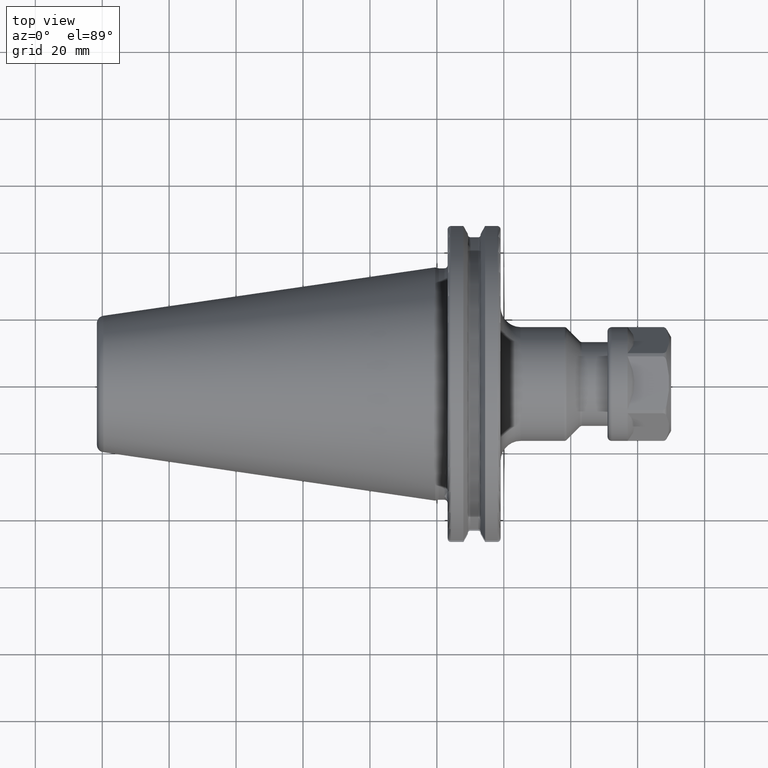
[diagram: clean part render]
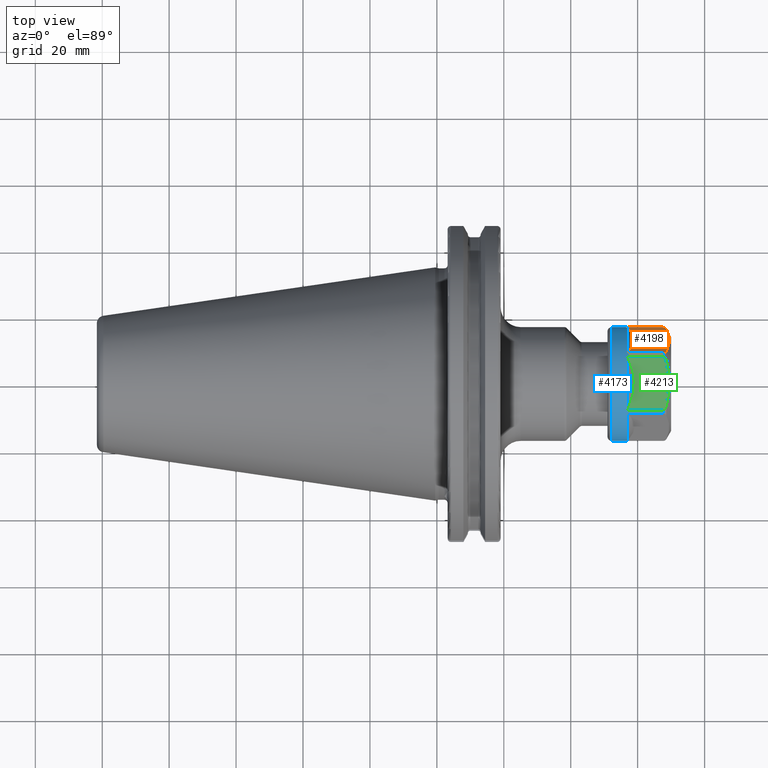
[diagram: same view with three faces highlighted in distinct colors, each labeled with its STEP entity id]
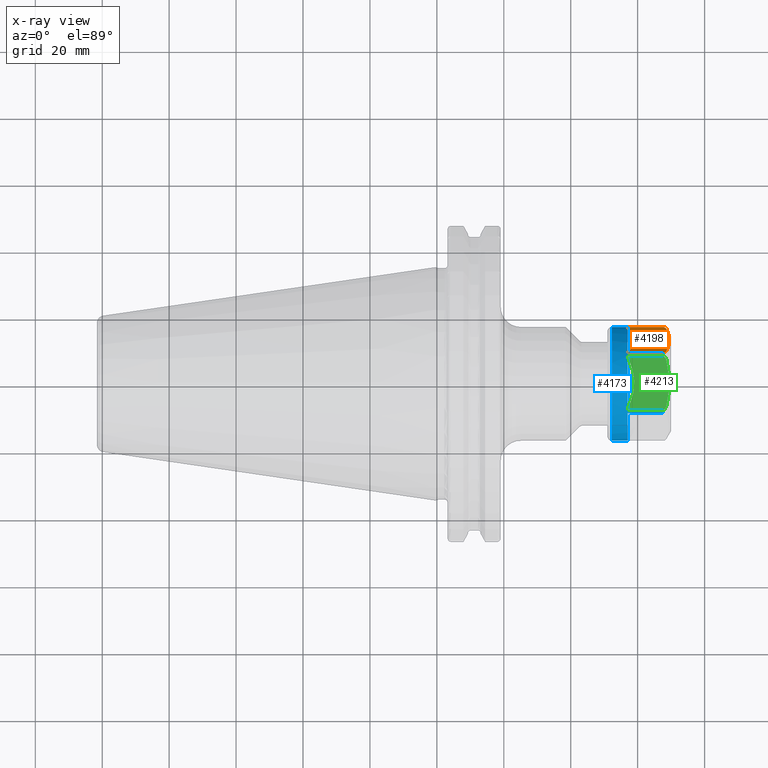
[diagram: x-ray of the same camera — body ghosted, the three highlighted faces saturated]
A machine part, top view with three faces highlighted in distinct colors.
The next image is the same camera in x-ray (body ghosted, the three faces saturated) — at least one of them is partly hidden behind the body in this view.
Their STEP definitions:

[orange] entity #4198 — the highlighted planar face has unit normal (0, -0.866, -0.5).
#3494=CARTESIAN_POINT('',(1.762879311067E1,9.706304892912E0,1.318818677172E1));
#3495=CARTESIAN_POINT('',(1.760135930288E1,9.647073108607E0,1.329077923156E1));
#3496=CARTESIAN_POINT('',(1.753829156841E1,9.530599845490E0,1.349251684100E1));
#3497=CARTESIAN_POINT('',(1.740404374214E1,9.356157215149E0,1.379466033976E1));
#3498=CARTESIAN_POINT('',(1.723276370862E1,9.203905182235E0,1.405836859632E1));
#3499=CARTESIAN_POINT('',(1.702726259196E1,9.084444597540E0,1.426528039852E1));
#3500=CARTESIAN_POINT('',(1.679442486846E1,9.008179269951E0,1.439737582076E1));
#3501=CARTESIAN_POINT('',(1.663092243804E1,8.990381056767E0,1.442820323028E1));
#3502=CARTESIAN_POINT('',(1.654626135594E1,8.990381056767E0,1.442820323028E1));
#3514=CARTESIAN_POINT('',(1.654626135594E1,1.699038105677E1,5.717967697245E-1));
#3515=CARTESIAN_POINT('',(1.663133375969E1,1.699038105677E1,5.717967697245E-1));
#3516=CARTESIAN_POINT('',(1.679554974256E1,1.697244211546E1,6.028679274930E-1));
#3517=CARTESIAN_POINT('',(1.702967586056E1,1.689531224929E1,7.364607744958E-1));
#3518=CARTESIAN_POINT('',(1.723504960512E1,1.677516391716E1,9.445637901788E-1));
#3519=CARTESIAN_POINT('',(1.740538646210E1,1.662305531649E1,1.208023614806E0));
#3520=CARTESIAN_POINT('',(1.753869894456E1,1.644942669453E1,1.508757209691E0));
#3521=CARTESIAN_POINT('',(1.760147975856E1,1.633342893149E1,1.709671228847E0));
#3522=CARTESIAN_POINT('',(1.762879311067E1,1.627445722062E1,1.811813228277E0));
#3614=CARTESIAN_POINT('',(1.762879311067E1,1.627445722062E1,1.811813228277E0));
#3615=CARTESIAN_POINT('',(1.783518476881E1,1.582884113008E1,2.583642937761E0));
#3616=CARTESIAN_POINT('',(1.817379271881E1,1.494402612666E1,4.116187478983E0));
#3617=CARTESIAN_POINT('',(1.843326934202E1,1.364301139240E1,6.369611100118E0));
#3618=CARTESIAN_POINT('',(1.843317407038E1,1.233698125034E1,8.631721662380E0));
#3619=CARTESIAN_POINT('',(1.817365600931E1,1.103635924051E1,1.088446506485E1));
#3620=CARTESIAN_POINT('',(1.783512110256E1,1.015178352292E1,1.241659515086E1));
#3621=CARTESIAN_POINT('',(1.762879311067E1,9.706304892912E0,1.318818677172E1));
#3699=CARTESIAN_POINT('',(6.009975831212E0,8.990381056767E0,1.442820323028E1));
#3700=CARTESIAN_POINT('',(6.248705399148E0,9.244028357085E0,1.398887321892E1));
#3701=CARTESIAN_POINT('',(6.673161357616E0,9.732842219418E0,1.314222277390E1));
#3702=CARTESIAN_POINT('',(7.159352323164E0,1.040499234248E1,1.197802461053E1));
#3703=CARTESIAN_POINT('',(7.516069298766E0,1.102203592348E1,1.090927377739E1));
#3704=CARTESIAN_POINT('',(7.761786246495E0,1.158669594192E1,9.931253937807E0));
#3705=CARTESIAN_POINT('',(7.915614399383E0,1.210134303711E1,9.039859015960E0));
#3706=CARTESIAN_POINT('',(7.995404065458E0,1.257267206196E1,8.223493216510E0));
#3707=CARTESIAN_POINT('',(8.017329716448E0,1.299097410315E1,7.498972758548E0));
#3708=CARTESIAN_POINT('',(7.995272685055E0,1.340927247380E1,6.774458988068E0));
#3709=CARTESIAN_POINT('',(7.915318904821E0,1.388066989644E1,5.957973730341E0));
#3710=CARTESIAN_POINT('',(7.761327500503E0,1.439528977644E1,5.066629576057E0));
#3711=CARTESIAN_POINT('',(7.515496046212E0,1.495983159183E1,4.088800942133E0));
#3712=CARTESIAN_POINT('',(7.158726522063E0,1.557669508518E1,3.020412512533E0));
#3713=CARTESIAN_POINT('',(6.672731555474E0,1.624842183706E1,1.856759247260E0));
#3714=CARTESIAN_POINT('',(6.248388969252E0,1.673708398548E1,1.010840329549E0));
#3715=CARTESIAN_POINT('',(6.009864102845E0,1.699051967746E1,5.718768346038E-1));
#3717=DIRECTION('',(9.999999998846E-1,-1.315636510517E-5,-7.598885784195E-6));
#3718=VECTOR('',#3717,1.053639725432E1);
#3719=CARTESIAN_POINT('',(6.009864102845E0,1.699051967746E1,5.718768346038E-1));
#3720=LINE('',#3719,#3718);
#3721=DIRECTION('',(-1.E0,0.E0,0.E0));
#3722=VECTOR('',#3721,1.053628552473E1);
#3723=CARTESIAN_POINT('',(1.654626135594E1,8.990381056767E0,1.442820323028E1));
#3724=LINE('',#3723,#3722);
#3800=VERTEX_POINT('',#3614);
#3801=VERTEX_POINT('',#3621);
#3812=VERTEX_POINT('',#3502);
#3813=VERTEX_POINT('',#3514);
#3836=CARTESIAN_POINT('',(6.009993566245E0,8.990371677756E0,1.442818817817E1));
#3837=CARTESIAN_POINT('',(6.009993566245E0,1.699035504402E1,5.717958944728E-1));
#3838=VERTEX_POINT('',#3836);
#3839=VERTEX_POINT('',#3837);
#4185=CARTESIAN_POINT('',(1.9E1,8.660254037844E0,1.5E1));
#4186=DIRECTION('',(0.E0,-8.660254037844E-1,-5.E-1));
#4187=DIRECTION('',(0.E0,5.E-1,-8.660254037844E-1));
#4188=AXIS2_PLACEMENT_3D('',#4185,#4186,#4187);
#4189=PLANE('',#4188);
#4190=ORIENTED_EDGE('',*,*,#4180,.T.);
#4191=ORIENTED_EDGE('',*,*,#4169,.T.);
#4192=ORIENTED_EDGE('',*,*,#4039,.T.);
#4193=ORIENTED_EDGE('',*,*,#4105,.T.);
#4194=ORIENTED_EDGE('',*,*,#4019,.T.);
#4195=ORIENTED_EDGE('',*,*,#4150,.T.);
#4196=EDGE_LOOP('',(#4190,#4191,#4192,#4193,#4194,#4195));
#4197=FACE_OUTER_BOUND('',#4196,.F.);
#4198=ADVANCED_FACE('',(#4197),#4189,.F.);
#3503=B_SPLINE_CURVE_WITH_KNOTS('',3,(#3494,#3495,#3496,#3497,#3498,#3499,#3500,
#3501,#3502),.UNSPECIFIED.,.F.,.F.,(4,1,1,1,1,1,4),(0.E0,1.666666666667E-1,
3.333333333333E-1,5.E-1,6.666666666667E-1,8.333333333333E-1,1.E0),
.UNSPECIFIED.);
#3523=B_SPLINE_CURVE_WITH_KNOTS('',3,(#3514,#3515,#3516,#3517,#3518,#3519,#3520,
#3521,#3522),.UNSPECIFIED.,.F.,.F.,(4,1,1,1,1,1,4),(0.E0,1.666666666667E-1,
3.333333333333E-1,5.E-1,6.666666666667E-1,8.333333333333E-1,1.E0),
.UNSPECIFIED.);
#3622=B_SPLINE_CURVE_WITH_KNOTS('',3,(#3614,#3615,#3616,#3617,#3618,#3619,#3620,
#3621),.UNSPECIFIED.,.F.,.F.,(4,1,1,1,1,4),(0.E0,2.E-1,4.E-1,6.E-1,8.E-1,1.E0),
.UNSPECIFIED.);
#3716=B_SPLINE_CURVE_WITH_KNOTS('',3,(#3699,#3700,#3701,#3702,#3703,#3704,#3705,
#3706,#3707,#3708,#3709,#3710,#3711,#3712,#3713,#3714,#3715),.UNSPECIFIED.,.F.,
.F.,(4,1,1,1,1,1,1,1,1,1,1,1,1,1,4),(0.E0,7.142857142857E-2,1.428571428571E-1,
2.142857142857E-1,2.857142857143E-1,3.571428571429E-1,4.285714285714E-1,5.E-1,
5.714285714286E-1,6.428571428571E-1,7.142857142857E-1,7.857142857143E-1,
8.571428571429E-1,9.285714285714E-1,1.E0),.UNSPECIFIED.);
#4019=EDGE_CURVE('',#3801,#3812,#3503,.T.);
#4039=EDGE_CURVE('',#3813,#3800,#3523,.T.);
#4105=EDGE_CURVE('',#3800,#3801,#3622,.T.);
#4150=EDGE_CURVE('',#3812,#3838,#3724,.T.);
#4169=EDGE_CURVE('',#3839,#3813,#3720,.T.);
#4180=EDGE_CURVE('',#3838,#3839,#3716,.T.);

[blue] entity #4173 — the highlighted cylindrical surface (partial cylindrical patch) has radius 17 mm, axis along (1, 0, 0).
#3386=DIRECTION('',(-1.E0,0.E0,4.859249806958E-11));
#3387=VECTOR('',#3386,1.529626135594E1);
#3388=CARTESIAN_POINT('',(1.654626135594E1,1.7E1,-1.152775558652E-10));
#3389=LINE('',#3388,#3387);
#3395=DIRECTION('',(-1.E0,0.E0,-4.859253938540E-11));
#3396=VECTOR('',#3395,1.529626135594E1);
#3397=CARTESIAN_POINT('',(1.654626135594E1,-1.7E1,1.152775494066E-10));
#3398=LINE('',#3397,#3396);
#3462=CARTESIAN_POINT('',(1.654626135594E1,-1.699038105677E1,
5.717967697245E-1));
#3464=CARTESIAN_POINT('',(1.654626135594E1,-8.990381056767E0,1.442820323028E1));
#3482=CARTESIAN_POINT('',(1.654626135594E1,-8.E0,1.5E1));
#3484=CARTESIAN_POINT('',(1.654626135594E1,8.E0,1.5E1));
#3502=CARTESIAN_POINT('',(1.654626135594E1,8.990381056767E0,1.442820323028E1));
#3514=CARTESIAN_POINT('',(1.654626135594E1,1.699038105677E1,5.717967697245E-1));
#3656=DIRECTION('',(9.999999992374E-1,-3.427788888926E-5,1.871268806668E-5));
#3657=VECTOR('',#3656,1.053590077871E1);
#3658=CARTESIAN_POINT('',(6.010360585267E0,-8.990019908330E0,1.442800607525E1));
#3659=LINE('',#3658,#3657);
#3660=DIRECTION('',(-1.E0,0.E0,0.E0));
#3661=VECTOR('',#3660,1.053616719791E1);
#3662=CARTESIAN_POINT('',(1.654626135594E1,-1.699038105677E1,
5.717967697245E-1));
#3663=LINE('',#3662,#3661);
#3664=CARTESIAN_POINT('',(6.010022197914E0,7.337104015724E-4,
-4.120040762721E-4));
#3665=DIRECTION('',(-1.E0,0.E0,0.E0));
#3666=DIRECTION('',(0.E0,-9.994334137081E-1,3.365786035761E-2));
#3667=AXIS2_PLACEMENT_3D('',#3664,#3665,#3666);
#3669=CARTESIAN_POINT('',(1.654626135594E1,0.E0,0.E0));
#3670=DIRECTION('',(-1.E0,0.E0,0.E0));
#3671=DIRECTION('',(0.E0,4.705882352941E-1,8.823529411765E-1));
#3672=AXIS2_PLACEMENT_3D('',#3669,#3670,#3671);
#3674=CARTESIAN_POINT('',(1.654626135594E1,0.E0,0.E0));
#3675=DIRECTION('',(-1.E0,0.E0,0.E0));
#3676=DIRECTION('',(0.E0,-5.288459445157E-1,8.487178370750E-1));
#3677=AXIS2_PLACEMENT_3D('',#3674,#3675,#3676);
#3679=CARTESIAN_POINT('',(1.654626135594E1,0.E0,0.E0));
#3680=DIRECTION('',(-1.E0,0.E0,0.E0));
#3681=DIRECTION('',(0.E0,-1.E0,0.E0));
#3682=AXIS2_PLACEMENT_3D('',#3679,#3680,#3681);
#3684=CARTESIAN_POINT('',(1.25E0,0.E0,0.E0));
#3685=DIRECTION('',(-1.E0,0.E0,0.E0));
#3686=DIRECTION('',(0.E0,-1.E0,0.E0));
#3687=AXIS2_PLACEMENT_3D('',#3684,#3685,#3686);
#3689=CARTESIAN_POINT('',(1.654626135594E1,0.E0,0.E0));
#3690=DIRECTION('',(-1.E0,0.E0,0.E0));
#3691=DIRECTION('',(0.E0,9.994341798098E-1,3.363510410144E-2));
#3692=AXIS2_PLACEMENT_3D('',#3689,#3690,#3691);
#3694=CARTESIAN_POINT('',(6.009993566245E0,2.034304302246E-4,
1.276242097576E-4));
#3695=DIRECTION('',(-1.E0,0.E0,0.E0));
#3696=DIRECTION('',(0.E0,5.288406942959E-1,8.487211085255E-1));
#3697=AXIS2_PLACEMENT_3D('',#3694,#3695,#3696);
#3717=DIRECTION('',(9.999999998846E-1,-1.315636510517E-5,-7.598885784195E-6));
#3718=VECTOR('',#3717,1.053639725432E1);
#3719=CARTESIAN_POINT('',(6.009864102845E0,1.699051967746E1,5.718768346038E-1));
#3720=LINE('',#3719,#3718);
#3721=DIRECTION('',(-1.E0,0.E0,0.E0));
#3722=VECTOR('',#3721,1.053628552473E1);
#3723=CARTESIAN_POINT('',(1.654626135594E1,8.990381056767E0,1.442820323028E1));
#3724=LINE('',#3723,#3722);
#3743=DIRECTION('',(1.E0,5.660973854209E-8,-2.603250325831E-7));
#3744=VECTOR('',#3743,1.053619155997E1);
#3745=CARTESIAN_POINT('',(6.010069795972E0,7.999999403549E0,1.500000274283E1));
#3746=LINE('',#3745,#3744);
#3747=DIRECTION('',(-1.E0,0.E0,0.E0));
#3748=VECTOR('',#3747,1.053618977066E1);
#3749=CARTESIAN_POINT('',(1.654626135594E1,-8.E0,1.5E1));
#3750=LINE('',#3749,#3748);
#3751=CARTESIAN_POINT('',(6.010015861223E0,-7.568525554981E-7,
-6.073012240115E-4));
#3752=DIRECTION('',(-1.E0,0.E0,0.E0));
#3753=DIRECTION('',(0.E0,-4.705733677049E-1,8.823608703965E-1));
#3754=AXIS2_PLACEMENT_3D('',#3751,#3752,#3753);
#3784=CARTESIAN_POINT('',(1.25E0,1.7E1,0.E0));
#3785=CARTESIAN_POINT('',(1.25E0,-1.7E1,0.E0));
#3786=VERTEX_POINT('',#3784);
#3787=VERTEX_POINT('',#3785);
#3792=CARTESIAN_POINT('',(1.654626135594E1,1.7E1,-1.152775558652E-10));
#3793=VERTEX_POINT('',#3792);
#3794=CARTESIAN_POINT('',(1.654626135594E1,-1.7E1,1.152775494066E-10));
#3795=VERTEX_POINT('',#3794);
#3808=VERTEX_POINT('',#3462);
#3809=VERTEX_POINT('',#3464);
#3810=VERTEX_POINT('',#3482);
#3811=VERTEX_POINT('',#3484);
#3812=VERTEX_POINT('',#3502);
#3813=VERTEX_POINT('',#3514);
#3820=CARTESIAN_POINT('',(6.010022197914E0,-1.699045297670E1,
5.717991917679E-1));
#3821=CARTESIAN_POINT('',(6.010022197914E0,-8.990424116186E0,1.442827233047E1));
#3822=VERTEX_POINT('',#3820);
#3823=VERTEX_POINT('',#3821);
#3836=CARTESIAN_POINT('',(6.009993566245E0,8.990371677756E0,1.442818817817E1));
#3837=CARTESIAN_POINT('',(6.009993566245E0,1.699035504402E1,5.717958944728E-1));
#3838=VERTEX_POINT('',#3836);
#3839=VERTEX_POINT('',#3837);
#3840=CARTESIAN_POINT('',(6.010015861223E0,-8.000026222655E0,1.500004916947E1));
#3841=CARTESIAN_POINT('',(6.010015861223E0,8.000025887465E0,1.500004854096E1));
#3842=VERTEX_POINT('',#3840);
#3843=VERTEX_POINT('',#3841);
#4143=CARTESIAN_POINT('',(-9.5E-1,0.E0,0.E0));
#4144=DIRECTION('',(1.E0,0.E0,0.E0));
#4145=DIRECTION('',(0.E0,-1.E0,0.E0));
#4146=AXIS2_PLACEMENT_3D('',#4143,#4144,#4145);
#4147=CYLINDRICAL_SURFACE('',#4146,1.7E1);
#4149=ORIENTED_EDGE('',*,*,#4148,.F.);
#4151=ORIENTED_EDGE('',*,*,#4150,.F.);
#4152=ORIENTED_EDGE('',*,*,#4017,.F.);
#4154=ORIENTED_EDGE('',*,*,#4153,.F.);
#4156=ORIENTED_EDGE('',*,*,#4155,.F.);
#4158=ORIENTED_EDGE('',*,*,#4157,.F.);
#4159=ORIENTED_EDGE('',*,*,#4001,.F.);
#4160=ORIENTED_EDGE('',*,*,#4122,.F.);
#4161=ORIENTED_EDGE('',*,*,#4137,.F.);
#4162=ORIENTED_EDGE('',*,*,#4127,.F.);
#4163=ORIENTED_EDGE('',*,*,#3987,.F.);
#4164=ORIENTED_EDGE('',*,*,#3942,.T.);
#4166=ORIENTED_EDGE('',*,*,#4165,.T.);
#4167=ORIENTED_EDGE('',*,*,#3938,.F.);
#4168=ORIENTED_EDGE('',*,*,#4031,.F.);
#4170=ORIENTED_EDGE('',*,*,#4169,.F.);
#4171=EDGE_LOOP('',(#4149,#4151,#4152,#4154,#4156,#4158,#4159,#4160,#4161,#4162,
#4163,#4164,#4166,#4167,#4168,#4170));
#4172=FACE_OUTER_BOUND('',#4171,.F.);
#4173=ADVANCED_FACE('',(#4172),#4147,.T.);
#3668=CIRCLE('',#3667,1.700081911817E1);
#3673=CIRCLE('',#3672,1.7E1);
#3678=CIRCLE('',#3677,1.7E1);
#3683=CIRCLE('',#3682,1.7E1);
#3688=CIRCLE('',#3687,1.7E1);
#3693=CIRCLE('',#3692,1.7E1);
#3698=CIRCLE('',#3697,1.699976636499E1);
#3755=CIRCLE('',#3754,1.700059122517E1);
#3938=EDGE_CURVE('',#3793,#3786,#3389,.T.);
#3942=EDGE_CURVE('',#3795,#3787,#3398,.T.);
#3987=EDGE_CURVE('',#3795,#3808,#3683,.T.);
#4001=EDGE_CURVE('',#3809,#3810,#3678,.T.);
#4017=EDGE_CURVE('',#3811,#3812,#3673,.T.);
#4031=EDGE_CURVE('',#3813,#3793,#3693,.T.);
#4122=EDGE_CURVE('',#3823,#3809,#3659,.T.);
#4127=EDGE_CURVE('',#3808,#3822,#3663,.T.);
#4137=EDGE_CURVE('',#3822,#3823,#3668,.T.);
#4148=EDGE_CURVE('',#3838,#3839,#3698,.T.);
#4150=EDGE_CURVE('',#3812,#3838,#3724,.T.);
#4153=EDGE_CURVE('',#3843,#3811,#3746,.T.);
#4155=EDGE_CURVE('',#3842,#3843,#3755,.T.);
#4157=EDGE_CURVE('',#3810,#3842,#3750,.T.);
#4165=EDGE_CURVE('',#3787,#3786,#3688,.T.);
#4169=EDGE_CURVE('',#3839,#3813,#3720,.T.);

[green] entity #4213 — the highlighted planar face has unit normal (0, 0, -1).
#3474=CARTESIAN_POINT('',(1.762879311067E1,-6.568152327710E0,1.5E1));
#3475=CARTESIAN_POINT('',(1.760135930288E1,-6.686615896319E0,1.5E1));
#3476=CARTESIAN_POINT('',(1.753829156841E1,-6.919562422553E0,1.5E1));
#3477=CARTESIAN_POINT('',(1.740404374214E1,-7.268447683235E0,1.5E1));
#3478=CARTESIAN_POINT('',(1.723276370862E1,-7.572951749063E0,1.5E1));
#3479=CARTESIAN_POINT('',(1.702726259196E1,-7.811872918452E0,1.5E1));
#3480=CARTESIAN_POINT('',(1.679442486846E1,-7.964403573631E0,1.5E1));
#3481=CARTESIAN_POINT('',(1.663092243804E1,-8.E0,1.5E1));
#3482=CARTESIAN_POINT('',(1.654626135594E1,-8.E0,1.5E1));
#3484=CARTESIAN_POINT('',(1.654626135594E1,8.E0,1.5E1));
#3485=CARTESIAN_POINT('',(1.663133375969E1,8.E0,1.5E1));
#3486=CARTESIAN_POINT('',(1.679554974256E1,7.964122117397E0,1.5E1));
#3487=CARTESIAN_POINT('',(1.702967586056E1,7.809862385039E0,1.5E1));
#3488=CARTESIAN_POINT('',(1.723504960512E1,7.569565720791E0,1.5E1));
#3489=CARTESIAN_POINT('',(1.740538646210E1,7.265348519454E0,1.5E1));
#3490=CARTESIAN_POINT('',(1.753869894456E1,6.918091275530E0,1.5E1));
#3491=CARTESIAN_POINT('',(1.760147975856E1,6.686095749444E0,1.5E1));
#3492=CARTESIAN_POINT('',(1.762879311067E1,6.568152327710E0,1.5E1));
#3600=CARTESIAN_POINT('',(1.762879311067E1,6.568152327710E0,1.5E1));
#3601=CARTESIAN_POINT('',(1.783518476881E1,5.676920146633E0,1.5E1));
#3602=CARTESIAN_POINT('',(1.817379271881E1,3.907290139793E0,1.5E1));
#3603=CARTESIAN_POINT('',(1.843326934202E1,1.305260671272E0,1.5E1));
#3604=CARTESIAN_POINT('',(1.843317407038E1,-1.306799612845E0,1.5E1));
#3605=CARTESIAN_POINT('',(1.817365600931E1,-3.908043632508E0,1.5E1));
#3606=CARTESIAN_POINT('',(1.783512110256E1,-5.677195067685E0,1.5E1));
#3607=CARTESIAN_POINT('',(1.762879311067E1,-6.568152327710E0,1.5E1));
#3725=CARTESIAN_POINT('',(6.010071585285E0,-8.E0,1.5E1));
#3726=CARTESIAN_POINT('',(6.251943186988E0,-7.485998864092E0,1.5E1));
#3727=CARTESIAN_POINT('',(6.680699030666E0,-6.497120569113E0,1.5E1));
#3728=CARTESIAN_POINT('',(7.168312492511E0,-5.143802546003E0,1.5E1));
#3729=CARTESIAN_POINT('',(7.523660761632E0,-3.906785795236E0,1.5E1));
#3730=CARTESIAN_POINT('',(7.766736437200E0,-2.779746954811E0,1.500000000001E1));
#3731=CARTESIAN_POINT('',(7.917891844721E0,-1.756951249297E0,1.499999999997E1));
#3732=CARTESIAN_POINT('',(7.995788745747E0,-8.239326313655E-1,
1.500000000013E1));
#3733=CARTESIAN_POINT('',(8.017060015068E0,5.064958327278E-6,1.499999999953E1));
#3734=CARTESIAN_POINT('',(7.995789127720E0,8.239192531498E-1,1.500000000176E1));
#3735=CARTESIAN_POINT('',(7.917892628416E0,1.756944307872E0,1.499999999344E1));
#3736=CARTESIAN_POINT('',(7.766737271266E0,2.779741926777E0,1.500000002449E1));
#3737=CARTESIAN_POINT('',(7.523657416405E0,3.906799540102E0,1.499999990861E1));
#3738=CARTESIAN_POINT('',(7.168304133121E0,5.143826100693E0,1.500000034109E1));
#3739=CARTESIAN_POINT('',(6.680692887220E0,6.497135419460E0,1.499999872705E1));
#3740=CARTESIAN_POINT('',(6.251938428685E0,7.486004343736E0,1.500000274283E1));
#3741=CARTESIAN_POINT('',(6.010069795972E0,7.999999403549E0,1.500000274283E1));
#3743=DIRECTION('',(1.E0,5.660973854209E-8,-2.603250325831E-7));
#3744=VECTOR('',#3743,1.053619155997E1);
#3745=CARTESIAN_POINT('',(6.010069795972E0,7.999999403549E0,1.500000274283E1));
#3746=LINE('',#3745,#3744);
#3747=DIRECTION('',(-1.E0,0.E0,0.E0));
#3748=VECTOR('',#3747,1.053618977066E1);
#3749=CARTESIAN_POINT('',(1.654626135594E1,-8.E0,1.5E1));
#3750=LINE('',#3749,#3748);
#3798=VERTEX_POINT('',#3600);
#3799=VERTEX_POINT('',#3607);
#3810=VERTEX_POINT('',#3482);
#3811=VERTEX_POINT('',#3484);
#3840=CARTESIAN_POINT('',(6.010015861223E0,-8.000026222655E0,1.500004916947E1));
#3841=CARTESIAN_POINT('',(6.010015861223E0,8.000025887465E0,1.500004854096E1));
#3842=VERTEX_POINT('',#3840);
#3843=VERTEX_POINT('',#3841);
#4199=CARTESIAN_POINT('',(1.9E1,-8.660254037844E0,1.5E1));
#4200=DIRECTION('',(0.E0,0.E0,-1.E0));
#4201=DIRECTION('',(0.E0,1.E0,0.E0));
#4202=AXIS2_PLACEMENT_3D('',#4199,#4200,#4201);
#4203=PLANE('',#4202);
#4205=ORIENTED_EDGE('',*,*,#4204,.T.);
#4206=ORIENTED_EDGE('',*,*,#4153,.T.);
#4207=ORIENTED_EDGE('',*,*,#4015,.T.);
#4208=ORIENTED_EDGE('',*,*,#4102,.T.);
#4209=ORIENTED_EDGE('',*,*,#4003,.T.);
#4210=ORIENTED_EDGE('',*,*,#4157,.T.);
#4211=EDGE_LOOP('',(#4205,#4206,#4207,#4208,#4209,#4210));
#4212=FACE_OUTER_BOUND('',#4211,.F.);
#4213=ADVANCED_FACE('',(#4212),#4203,.F.);
#3483=B_SPLINE_CURVE_WITH_KNOTS('',3,(#3474,#3475,#3476,#3477,#3478,#3479,#3480,
#3481,#3482),.UNSPECIFIED.,.F.,.F.,(4,1,1,1,1,1,4),(0.E0,1.666666666667E-1,
3.333333333333E-1,5.E-1,6.666666666667E-1,8.333333333333E-1,1.E0),
.UNSPECIFIED.);
#3493=B_SPLINE_CURVE_WITH_KNOTS('',3,(#3484,#3485,#3486,#3487,#3488,#3489,#3490,
#3491,#3492),.UNSPECIFIED.,.F.,.F.,(4,1,1,1,1,1,4),(0.E0,1.666666666667E-1,
3.333333333333E-1,5.E-1,6.666666666667E-1,8.333333333333E-1,1.E0),
.UNSPECIFIED.);
#3608=B_SPLINE_CURVE_WITH_KNOTS('',3,(#3600,#3601,#3602,#3603,#3604,#3605,#3606,
#3607),.UNSPECIFIED.,.F.,.F.,(4,1,1,1,1,4),(0.E0,2.E-1,4.E-1,6.E-1,8.E-1,1.E0),
.UNSPECIFIED.);
#3742=B_SPLINE_CURVE_WITH_KNOTS('',3,(#3725,#3726,#3727,#3728,#3729,#3730,#3731,
#3732,#3733,#3734,#3735,#3736,#3737,#3738,#3739,#3740,#3741),.UNSPECIFIED.,.F.,
.F.,(4,1,1,1,1,1,1,1,1,1,1,1,1,1,4),(0.E0,7.142857142857E-2,1.428571428571E-1,
2.142857142857E-1,2.857142857143E-1,3.571428571429E-1,4.285714285714E-1,5.E-1,
5.714285714286E-1,6.428571428571E-1,7.142857142857E-1,7.857142857143E-1,
8.571428571429E-1,9.285714285714E-1,1.E0),.UNSPECIFIED.);
#4003=EDGE_CURVE('',#3799,#3810,#3483,.T.);
#4015=EDGE_CURVE('',#3811,#3798,#3493,.T.);
#4102=EDGE_CURVE('',#3798,#3799,#3608,.T.);
#4153=EDGE_CURVE('',#3843,#3811,#3746,.T.);
#4157=EDGE_CURVE('',#3810,#3842,#3750,.T.);
#4204=EDGE_CURVE('',#3842,#3843,#3742,.T.);